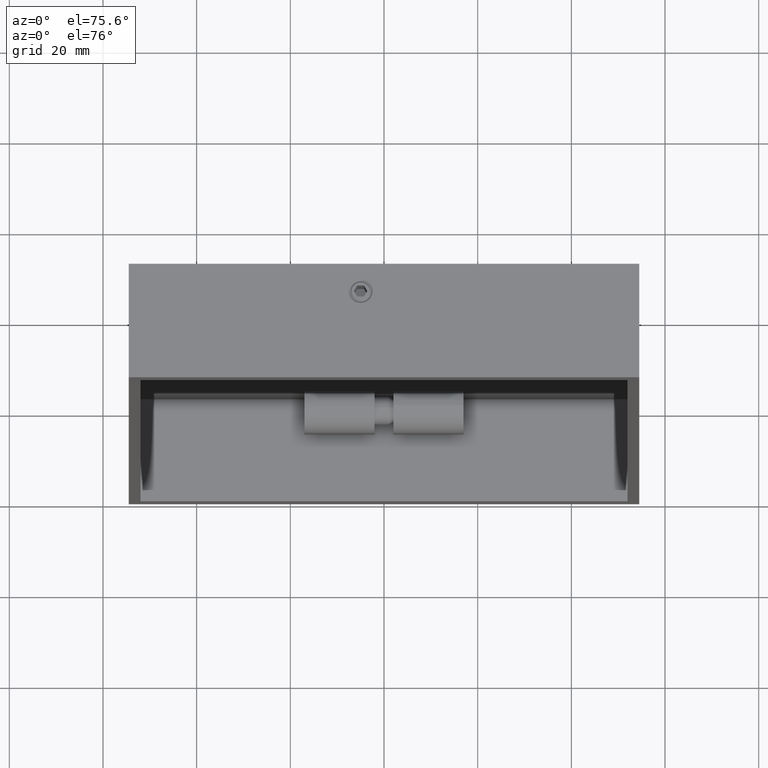
[diagram: clean part render]
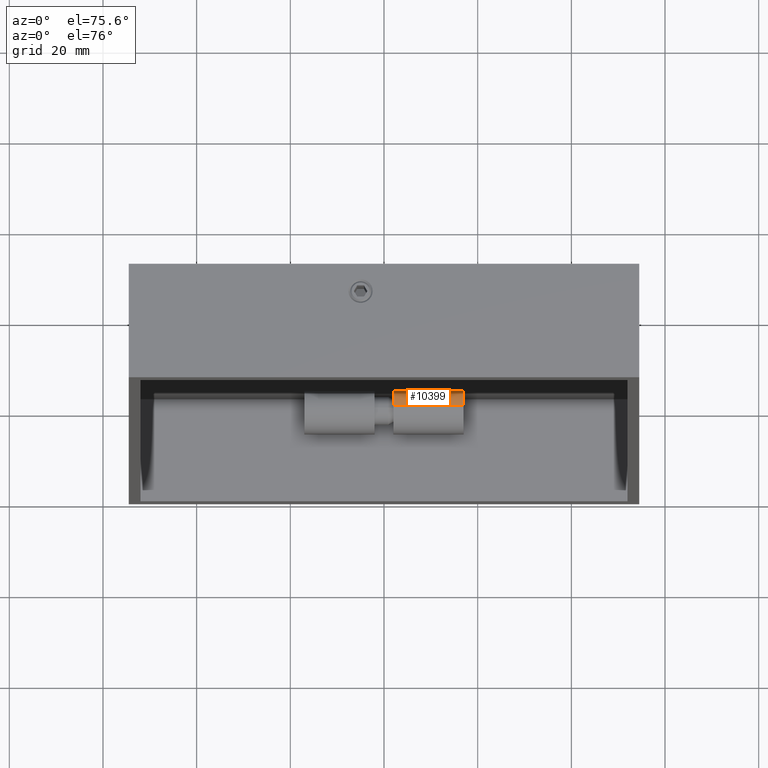
[diagram: same view with one face highlighted and labeled with its STEP entity id]
A machine part, auxiliary view. The second image highlights one B-rep face of the part: STEP entity #10399.
In plain terms, the highlighted cylindrical surface (edge-blend (fillet) strip) has radius 5 mm, axis along (-1, -0, 0).
Its self-contained STEP definition (entity closure, byte-faithful):
#11 = DIRECTION ( 'NONE',  ( 1.000000000000000000, 0.0000000000000000000, -1.273191542001326800E-016 ) ) ;
#135 = CYLINDRICAL_SURFACE ( 'NONE', #900, 4.999999999999997300 ) ;
#186 = ORIENTED_EDGE ( 'NONE', *, *, #7947, .F. ) ;
#424 = DIRECTION ( 'NONE',  ( 0.0000000000000000000, 0.0000000000000000000, 1.000000000000000000 ) ) ;
#900 = AXIS2_PLACEMENT_3D ( 'NONE', #2440, #1220, #10698 ) ;
#1043 = LINE ( 'NONE', #2522, #10101 ) ;
#1220 = DIRECTION ( 'NONE',  ( 1.000000000000000000, 0.0000000000000000000, -1.273191542001326800E-016 ) ) ;
#1255 = EDGE_CURVE ( 'NONE', #14932, #2741, #1043, .T. ) ;
#1587 = CARTESIAN_POINT ( 'NONE',  ( 25.25000000000000700, 19.00000000000000400, 48.50000000000000000 ) ) ;
#1642 = DIRECTION ( 'NONE',  ( 0.0000000000000000000, 0.0000000000000000000, 1.000000000000000000 ) ) ;
#1661 = CIRCLE ( 'NONE', #12681, 4.999999999999997300 ) ;
#1662 = DIRECTION ( 'NONE',  ( 1.000000000000000000, 0.0000000000000000000, -1.273191542001326800E-016 ) ) ;
#2440 = CARTESIAN_POINT ( 'NONE',  ( 10.25000000000000900, 19.00000000000000400, 48.50000000000000000 ) ) ;
#2522 = CARTESIAN_POINT ( 'NONE',  ( 10.25000000000000900, 22.50000000000000000, 44.92928578572857400 ) ) ;
#2741 = VERTEX_POINT ( 'NONE', #8081 ) ;
#5061 = ORIENTED_EDGE ( 'NONE', *, *, #1255, .T. ) ;
#6336 = FACE_OUTER_BOUND ( 'NONE', #10745, .T. ) ;
#6502 = ORIENTED_EDGE ( 'NONE', *, *, #12527, .F. ) ;
#7274 = CARTESIAN_POINT ( 'NONE',  ( 10.25000000000000900, 19.00000000000000400, 43.50000000000000700 ) ) ;
#7942 = AXIS2_PLACEMENT_3D ( 'NONE', #1587, #11247, #1642 ) ;
#7947 = EDGE_CURVE ( 'NONE', #9515, #2741, #8283, .T. ) ;
#8081 = CARTESIAN_POINT ( 'NONE',  ( 25.25000000000000700, 22.50000000000000400, 44.92928578572858100 ) ) ;
#8283 = CIRCLE ( 'NONE', #7942, 4.999999999999997300 ) ;
#8791 = EDGE_CURVE ( 'NONE', #12204, #14932, #1661, .T. ) ;
#8942 = CARTESIAN_POINT ( 'NONE',  ( 10.25000000000000900, 19.00000000000000400, 48.50000000000000000 ) ) ;
#9314 = VECTOR ( 'NONE', #13571, 1000.000000000000000 ) ;
#9515 = VERTEX_POINT ( 'NONE', #13487 ) ;
#10101 = VECTOR ( 'NONE', #11, 1000.000000000000000 ) ;
#10399 = ADVANCED_FACE ( 'NONE', ( #6336 ), #135, .T. ) ;
#10698 = DIRECTION ( 'NONE',  ( 0.0000000000000000000, 0.0000000000000000000, -1.000000000000000000 ) ) ;
#10745 = EDGE_LOOP ( 'NONE', ( #6502, #14888, #5061, #186 ) ) ;
#11247 = DIRECTION ( 'NONE',  ( 1.000000000000000000, 0.0000000000000000000, -1.273191542001326800E-016 ) ) ;
#12204 = VERTEX_POINT ( 'NONE', #7274 ) ;
#12527 = EDGE_CURVE ( 'NONE', #12204, #9515, #14338, .T. ) ;
#12681 = AXIS2_PLACEMENT_3D ( 'NONE', #8942, #1662, #424 ) ;
#13466 = CARTESIAN_POINT ( 'NONE',  ( 10.25000000000000900, 19.00000000000000400, 43.50000000000000700 ) ) ;
#13487 = CARTESIAN_POINT ( 'NONE',  ( 25.25000000000000700, 19.00000000000000400, 43.50000000000000700 ) ) ;
#13571 = DIRECTION ( 'NONE',  ( 1.000000000000000000, 0.0000000000000000000, -1.273191542001326800E-016 ) ) ;
#13759 = CARTESIAN_POINT ( 'NONE',  ( 10.25000000000000900, 22.50000000000000400, 44.92928578572858100 ) ) ;
#14338 = LINE ( 'NONE', #13466, #9314 ) ;
#14888 = ORIENTED_EDGE ( 'NONE', *, *, #8791, .T. ) ;
#14932 = VERTEX_POINT ( 'NONE', #13759 ) ;